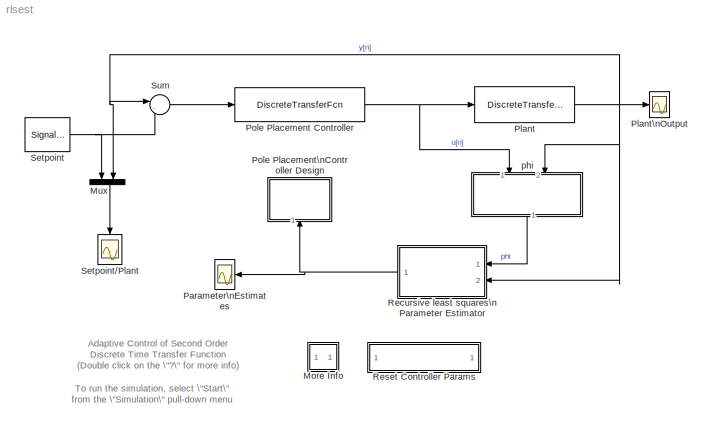
MODEL rlsest
KIND model
CONFIG StartFcn = rlspps([],[],[],'reset',find_system(get_param(gcs,'Handle'),'LookUnderMasks','all','Tag','PPC'));
BLOCK [SubSystem] More Info
  MaskDisplay = disp('?')
  MaskIconFrame = on
  MaskIconOpaque = on
  MaskIconRotate = none
  MaskIconUnits = autoscale
  MinAlgLoopOccurrences = off
  Ports = []
  PropExecContextAcrossSSBoundary = on
  RTWSystemCode = Auto
  TreatAsAtomicUnit = off
BLOCK [Mux] Mux
  DisplayOption = bar
  Inputs = 2
  Ports = [2, 1]
BLOCK [Scope] Parameter\nEstimates
  DataFormat = Array
  NumInputPorts = 1
  Ports = [1]
  TickLabels = on
  TimeRange = 100.000000
BLOCK [DiscreteTransferFcn] Plant
  Denominator = [1 -1.6 0.8]
  Numerator = [-3.4 1.5]
BLOCK [Scope] Plant\nOutput
  DataFormat = Array
  NumInputPorts = 1
  Ports = [1]
  TickLabels = on
  TimeRange = 100.000000
BLOCK [DiscreteTransferFcn] Pole Placement Controller
  Denominator = [1 -1]
  Numerator = [0.5 0.5]
  Tag = PPC
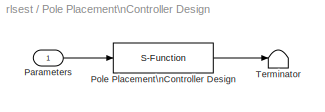
BLOCK [SubSystem] Pole Placement\nController Design
  MaskCallbackString = |||
  MaskDescription = Pole placement controller - installs new controller gains based upon a characteristic polynomial.
  MaskDisplay = disp('rlsppd')
  MaskEnableString = on,on,on,on
  MaskHelp = Implements a pole placement design scheme for a discrete time controller.  Change the characteristic polynomial to see how the closed loop behavior changes.
  MaskIconFrame = on
  MaskIconOpaque = on
  MaskIconRotate = none
  MaskIconUnits = autoscale
  MaskInitialization = name=&1;order=@2;char_poly=@3;ts=@4;\n\n
  MaskPromptString = Block name:|Model order:|Characteristic polynomial:|Sample time:
  MaskStyleString = edit,edit,edit,edit
  MaskTabNameString = ,,,
  MaskToolTipString = on,on,on,on
  MaskTunableValueString = on,on,on,on
  MaskType = Pole Placement
  MaskValueString = rlsest/Pole Placement Controller|2|poly([.6 .6 .6])|10
  MaskVarAliasString = ,,,
  MaskVisibilityString = on,on,on,on
  MinAlgLoopOccurrences = off
  Ports = [1]
  PropExecContextAcrossSSBoundary = on
  RTWSystemCode = Auto
  TreatAsAtomicUnit = off
BLOCK [Inport] Pole Placement\nController Design/Parameters
  IconDisplay = Port number
  LatchInput = off
  Port = 1
BLOCK [S-Function] Pole Placement\nController Design/Pole Placement\nController Design
  FunctionName = rlspps
  Parameters = name,order,char_poly,ts
  Ports = [1, 1]
BLOCK [Terminator] Pole Placement\nController Design/Terminator
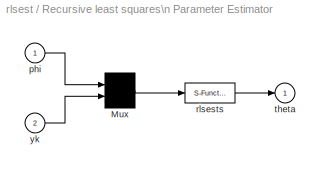
BLOCK [SubSystem] Recursive least squares\n Parameter Estimator
  MaskCallbackString = ||
  MaskDescription = Hook input 1 to a state vector, and input 2 to the system output.\n
  MaskDisplay = disp('RLS\\nEstimator')
  MaskEnableString = on,on,on
  MaskHelp = Implements a Recursive Least Squares parameter estimator. Mask and unmask this block to see how it works.
  MaskIconFrame = on
  MaskIconOpaque = on
  MaskIconRotate = none
  MaskIconUnits = autoscale
  MaskInitialization = nstates = 2*@1;lambda=@2;ts=@3;
  MaskPromptString = Model Order:|Forgetting Factor:|Sample Time:
  MaskStyleString = edit,edit,edit
  MaskTabNameString = ,,
  MaskToolTipString = on,on,on
  MaskTunableValueString = on,on,on
  MaskType = RLS Estimator
  MaskValueString = 2|0.8|1
  MaskVarAliasString = ,,
  MaskVisibilityString = on,on,on
  MinAlgLoopOccurrences = off
  Ports = [2, 1]
  PropExecContextAcrossSSBoundary = on
  RTWSystemCode = Auto
  TreatAsAtomicUnit = off
BLOCK [Mux] Recursive least squares\n Parameter Estimator/Mux
  Inputs = [nstates 1]
  Ports = [2, 1]
BLOCK [Inport] Recursive least squares\n Parameter Estimator/phi
  IconDisplay = Port number
  LatchInput = off
  Port = 1
BLOCK [S-Function] Recursive least squares\n Parameter Estimator/rlsests
  FunctionName = rlsests
  Parameters = nstates,lambda,ts
  Ports = [1, 1]
BLOCK [Outport] Recursive least squares\n Parameter Estimator/theta
  IconDisplay = Port number
  InitialOutput = 0
BLOCK [Inport] Recursive least squares\n Parameter Estimator/yk
  IconDisplay = Port number
  LatchInput = off
  Port = 2
BLOCK [SubSystem] Reset Controller Params
  MaskDisplay = disp('Reset Controller')
  MaskIconFrame = on
  MaskIconOpaque = on
  MaskIconRotate = none
  MaskIconUnits = autoscale
  MinAlgLoopOccurrences = off
  OpenFcn = rlspps([],[],[],'reset',find_system(get_param(gcs,'Handle'),'LookUnderMasks','all','Tag','PPC'));
  Ports = []
  PropExecContextAcrossSSBoundary = on
  RTWSystemCode = Auto
  TreatAsAtomicUnit = off
BLOCK [SignalGenerator] Setpoint
  Amplitude = 5.000000
  Frequency = 0.100000
  Ports = [0, 1]
  Units = rad/sec
  WaveForm = square
BLOCK [Scope] Setpoint//Plant
  DataFormat = Array
  NumInputPorts = 1
  Ports = [1]
  TickLabels = on
  TimeRange = 100.000000
BLOCK [Sum] Sum
  IconShape = round
  Inputs = |-+
  Ports = [2, 1]
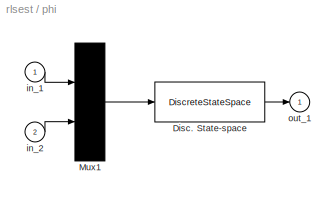
BLOCK [SubSystem] phi
  MaskCallbackString = |
  MaskDescription = State Generator:
  MaskDisplay = disp('State\\nGenerator')
  MaskEnableString = on,on
  MaskHelp = This block generates the state vector for use with the RLS parameter estimator.
  MaskIconFrame = on
  MaskIconOpaque = on
  MaskIconRotate = none
  MaskIconUnits = autoscale
  MaskInitialization = order = @1;ts = @2;
  MaskPromptString = Model Order:|Sample Time:
  MaskStyleString = edit,edit
  MaskTabNameString = ,
  MaskToolTipString = on,on
  MaskTunableValueString = on,on
  MaskType = State Generator
  MaskValueString = 2|1
  MaskVarAliasString = ,
  MaskVisibilityString = on,on
  MinAlgLoopOccurrences = off
  Ports = [2, 1]
  PropExecContextAcrossSSBoundary = on
  RTWSystemCode = Auto
  TreatAsAtomicUnit = off
BLOCK [DiscreteStateSpace] phi/Disc. State-space
  A = [zeros(1,2*order);eye(order-1,2*order);zeros(1,2*order);zeros(order-1,order),eye(order-1,order)]
  B = [1, zeros(1,2*order-1);zeros(1,order),-1,zeros(1,order-1)]'
  C = eye(2*order)
  D = [zeros(2*order,order)]
  SampleTime = ts
BLOCK [Mux] phi/Mux1
  Inputs = [1 1]
  Ports = [2, 1]
BLOCK [Inport] phi/in_1
  IconDisplay = Port number
  LatchInput = off
  Port = 1
BLOCK [Inport] phi/in_2
  IconDisplay = Port number
  LatchInput = off
  Port = 2
BLOCK [Outport] phi/out_1
  IconDisplay = Port number
  InitialOutput = 0
ANNOTATION (root): Adaptive Control of Second Order \nDiscrete Time Transfer Function\n(Double click on the \"?\" for more info)
ANNOTATION (root): To run the simulation, select \"Start\"\nfrom the \"Simulation\" pull-down menu
ANNOTATION More Info: Modify the parameters of the Plant during a simulation and observe\nthat the adaptive controller always maintains stability.
ANNOTATION More Info: This adaptive controller was implemented using the set_param \ncommand in the M-file rlsppd. Unmask the other blocks \nto see how they were implemented.
ANNOTATION More Info: This demonstration shows how an adaptive controller can\nbe designed and simulated.
LINE Mux:1 -> Setpoint//Plant:1
NET Plant:1 -> Mux:2, Plant\nOutput:1, Recursive least squares\n Parameter Estimator:2, Sum:1, phi:2
NET Pole Placement Controller:1 -> Plant:1, phi:1
LINE Pole Placement\nController Design/Parameters:1 -> Pole Placement\nController Design/Pole Placement\nController Design:1
LINE Pole Placement\nController Design/Pole Placement\nController Design:1 -> Pole Placement\nController Design/Terminator:1
LINE Recursive least squares\n Parameter Estimator/Mux:1 -> Recursive least squares\n Parameter Estimator/rlsests:1
LINE Recursive least squares\n Parameter Estimator/phi:1 -> Recursive least squares\n Parameter Estimator/Mux:1
LINE Recursive least squares\n Parameter Estimator/rlsests:1 -> Recursive least squares\n Parameter Estimator/theta:1
LINE Recursive least squares\n Parameter Estimator/yk:1 -> Recursive least squares\n Parameter Estimator/Mux:2
NET Recursive least squares\n Parameter Estimator:1 -> Parameter\nEstimates:1, Pole Placement\nController Design:1
NET Setpoint:1 -> Mux:1, Sum:2
LINE Sum:1 -> Pole Placement Controller:1
LINE phi/Disc. State-space:1 -> phi/out_1:1
LINE phi/Mux1:1 -> phi/Disc. State-space:1
LINE phi/in_1:1 -> phi/Mux1:1
LINE phi/in_2:1 -> phi/Mux1:2
LINE phi:1 -> Recursive least squares\n Parameter Estimator:1
note: NET lines group one-source signal fan-out (src -> all destinations, sorted); 1:1 wires keep LINE
